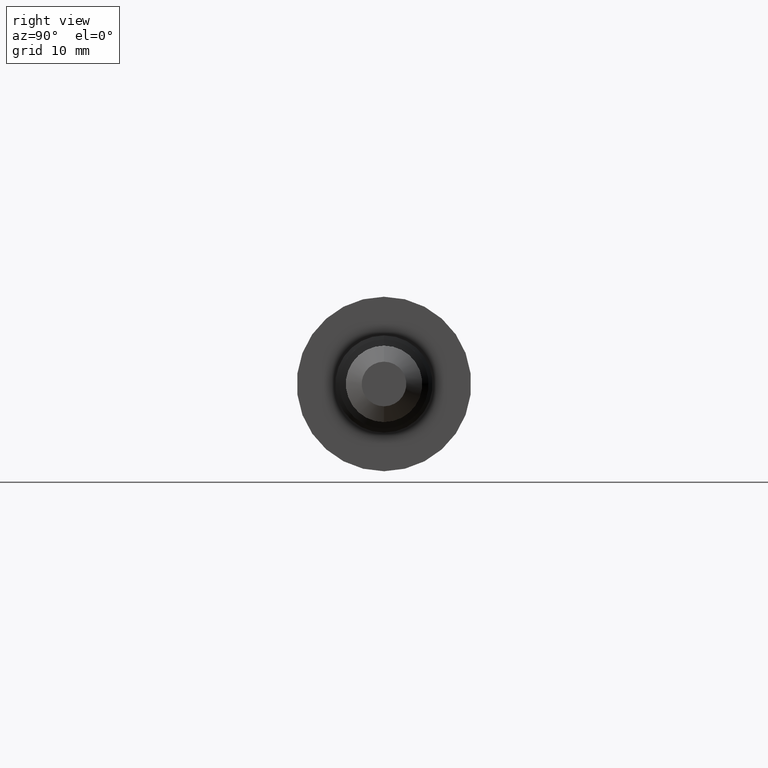
[diagram: clean part render]
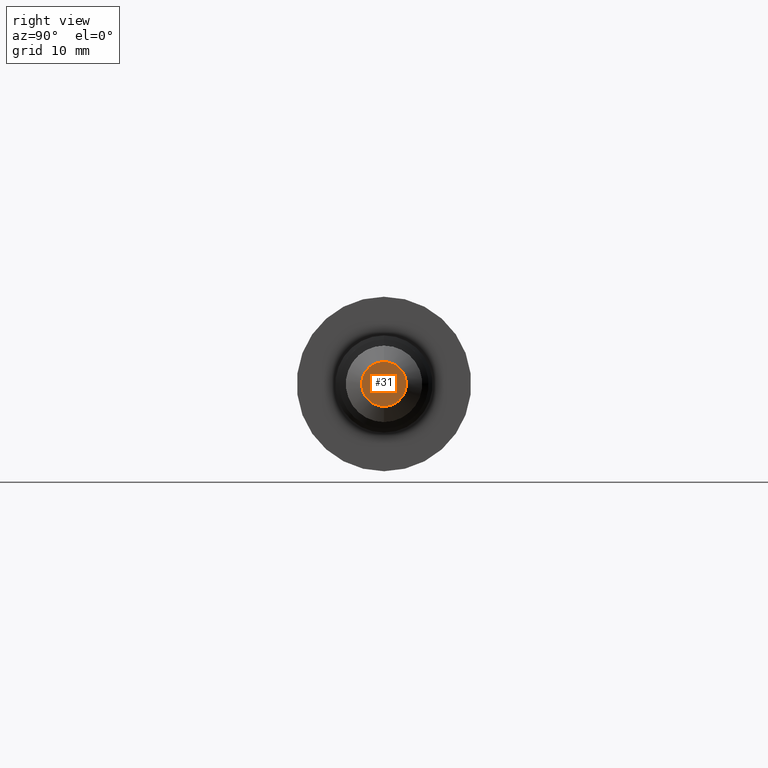
[diagram: same view with one face highlighted and labeled with its STEP entity id]
A machine part, right view. The second image highlights one B-rep face of the part: STEP entity #31.
In plain terms, the highlighted planar face has unit normal (-1, 0, -0).
Its self-contained STEP definition (entity closure, byte-faithful):
#31 = ADVANCED_FACE ( 'NONE', ( #415 ), #214, .F. ) ;
#74 = DIRECTION ( 'NONE',  ( 0.0000000000000000000, 0.0000000000000000000, 1.000000000000000000 ) ) ;
#101 = EDGE_CURVE ( 'NONE', #459, #584, #371, .T. ) ;
#122 = DIRECTION ( 'NONE',  ( -1.000000000000000000, -0.0000000000000000000, -0.0000000000000000000 ) ) ;
#124 = DIRECTION ( 'NONE',  ( -0.0000000000000000000, 0.0000000000000000000, 1.000000000000000000 ) ) ;
#146 = EDGE_CURVE ( 'NONE', #584, #459, #210, .T. ) ;
#169 = CARTESIAN_POINT ( 'NONE',  ( 3.000000000000000400, 0.0000000000000000000, 0.0000000000000000000 ) ) ;
#210 = CIRCLE ( 'NONE', #546, 0.09721796769724436200 ) ;
#212 = DIRECTION ( 'NONE',  ( -1.000000000000000000, 0.0000000000000000000, -0.0000000000000000000 ) ) ;
#214 = PLANE ( 'NONE',  #346 ) ;
#221 = ORIENTED_EDGE ( 'NONE', *, *, #146, .F. ) ;
#299 = CARTESIAN_POINT ( 'NONE',  ( 3.000000000000000400, 1.614806825090377000E-017, -0.09721796769724436200 ) ) ;
#324 = EDGE_LOOP ( 'NONE', ( #221, #592 ) ) ;
#346 = AXIS2_PLACEMENT_3D ( 'NONE', #608, #212, #124 ) ;
#371 = CIRCLE ( 'NONE', #456, 0.09721796769724436200 ) ;
#415 = FACE_OUTER_BOUND ( 'NONE', #324, .T. ) ;
#456 = AXIS2_PLACEMENT_3D ( 'NONE', #543, #501, #74 ) ;
#459 = VERTEX_POINT ( 'NONE', #299 ) ;
#501 = DIRECTION ( 'NONE',  ( -1.000000000000000000, -0.0000000000000000000, -0.0000000000000000000 ) ) ;
#543 = CARTESIAN_POINT ( 'NONE',  ( 3.000000000000000400, 0.0000000000000000000, 0.0000000000000000000 ) ) ;
#546 = AXIS2_PLACEMENT_3D ( 'NONE', #169, #122, #663 ) ;
#584 = VERTEX_POINT ( 'NONE', #594 ) ;
#592 = ORIENTED_EDGE ( 'NONE', *, *, #101, .F. ) ;
#594 = CARTESIAN_POINT ( 'NONE',  ( 3.000000000000000400, 0.0000000000000000000, 0.09721796769724436200 ) ) ;
#608 = CARTESIAN_POINT ( 'NONE',  ( 3.000000000000000400, 0.09721796769724436200, 0.0000000000000000000 ) ) ;
#663 = DIRECTION ( 'NONE',  ( 0.0000000000000000000, 0.0000000000000000000, 1.000000000000000000 ) ) ;